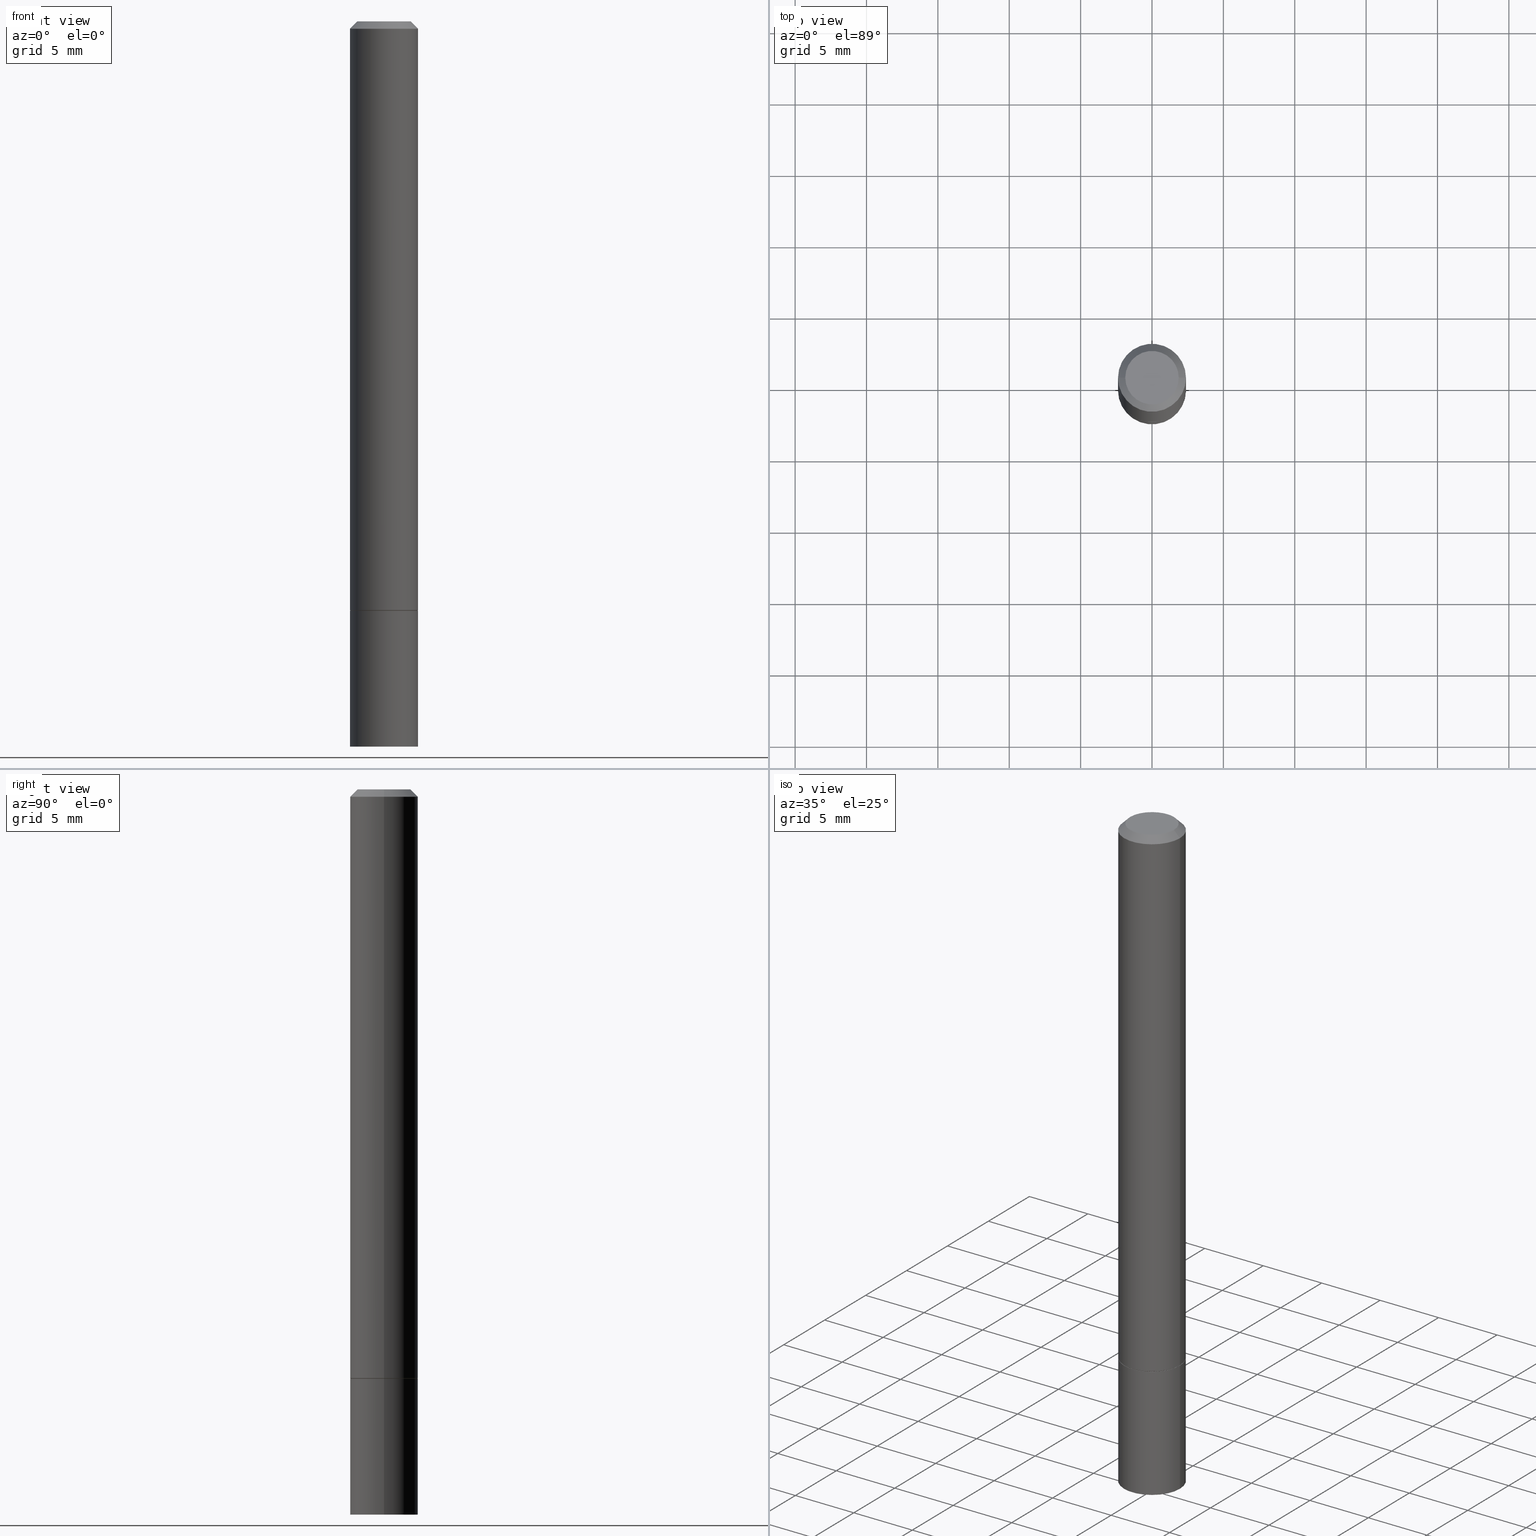
[diagram: canonical four-view strip — front | top / right | iso, engineering-drawing reading convention]
A machine part, canonical four-view strip (front | top / right | iso — engineering-drawing reading convention). The complete STEP part file that produces these views, byte-faithful:
ISO-10303-21;
HEADER;
FILE_DESCRIPTION (( 'STEP AP203' ),
    '1' );
FILE_NAME ('31754.STEP',
    '2024-02-27T13:29:47',
    ( '' ),
    ( '' ),
    'SwSTEP 2.0',
    'SolidWorks 2023',
    '' );
FILE_SCHEMA (( 'CONFIG_CONTROL_DESIGN' ));
ENDSEC;

DATA;
#1 = ORIENTED_EDGE ( 'NONE', *, *, #70, .F. ) ;
#2 = FACE_OUTER_BOUND ( 'NONE', #336, .T. ) ;
#3 = COORDINATED_UNIVERSAL_TIME_OFFSET ( 5, 0, .BEHIND. ) ;
#4 = CARTESIAN_POINT ( 'NONE',  ( 0.09375000000000001388, -6.328309926653198928E-15, -1.625000000000000000 ) ) ;
#5 = CONICAL_SURFACE ( 'NONE', #125, 0.09374999999999981959, 0.7853981633974465026 ) ;
#6 = AXIS2_PLACEMENT_3D ( 'NONE', #267, #240, #188 ) ;
#7 = EDGE_CURVE ( 'NONE', #216, #362, #335, .T. ) ;
#8 = DIRECTION ( 'NONE',  ( -1.000000000000000000, 6.982962677686267499E-15, 0.000000000000000000 ) ) ;
#9 = CARTESIAN_POINT ( 'NONE',  ( 3.971441341244661927E-29, -5.670165694281268417E-15, -1.623999999999999888 ) ) ;
#10 = ADVANCED_BREP_SHAPE_REPRESENTATION ( '31754', ( #287, #284, #88 ), #360 ) ;
#11 = EDGE_CURVE ( 'NONE', #252, #250, #248, .T. ) ;
#12 = CARTESIAN_POINT ( 'NONE',  ( 3.973886810050848091E-29, -5.673657175620113002E-15, -1.625000000000000222 ) ) ;
#13 = ORGANIZATION ( 'UNSPECIFIED', 'UNSPECIFIED', '' ) ;
#14 = DIRECTION ( 'NONE',  ( -2.445468806185136597E-29, 3.491481338843145583E-15, 1.000000000000000000 ) ) ;
#15 = DIRECTION ( 'NONE',  ( -2.445468806185136877E-29, 3.491481338843145188E-15, 1.000000000000000000 ) ) ;
#16 = CARTESIAN_POINT ( 'NONE',  ( 0.09375000000000001388, -6.546527510330875041E-16, 4.571415727308690506E-30 ) ) ;
#17 = ADVANCED_FACE ( 'NONE', ( #2 ), #171, .T. ) ;
#18 = DIRECTION ( 'NONE',  ( 1.000000000000000000, -6.982962677686261977E-15, 0.000000000000000000 ) ) ;
#19 = PLANE ( 'NONE',  #307 ) ;
#20 = DIRECTION ( 'NONE',  ( 2.438088387897960049E-29, -3.491481338843145188E-15, -1.000000000000000000 ) ) ;
#21 = PRODUCT_DEFINITION ( 'UNKNOWN', '', #222, #152 ) ;
#22 = AXIS2_PLACEMENT_3D ( 'NONE', #351, #316, #123 ) ;
#23 = VERTEX_POINT ( 'NONE', #65 ) ;
#24 = PERSON_AND_ORGANIZATION_ROLE ( 'creator' ) ;
#25 = EDGE_LOOP ( 'NONE', ( #303, #153, #224, #170 ) ) ;
#26 = DIRECTION ( 'NONE',  ( -2.445468806185136597E-29, 3.491481338843145583E-15, 1.000000000000000000 ) ) ;
#27 = PRODUCT_RELATED_PRODUCT_CATEGORY ( 'detail', '', ( #61 ) ) ;
#28 = CARTESIAN_POINT ( 'NONE',  ( 0.000000000000000000, 0.000000000000000000, 0.000000000000000000 ) ) ;
#29 = PERSON_AND_ORGANIZATION_ROLE ( 'creator' ) ;
#30 = EDGE_LOOP ( 'NONE', ( #225, #176 ) ) ;
#31 = PRODUCT_DEFINITION_SHAPE ( 'NONE', 'NONE',  #21 ) ;
#32 = DIRECTION ( 'NONE',  ( 0.7071067811864267805, -2.468850131080992517E-15, 0.7071067811866682540 ) ) ;
#33 = APPROVAL ( #365, 'UNSPECIFIED' ) ;
#34 = DIRECTION ( 'NONE',  ( -2.445468806185136597E-29, 3.491481338843145583E-15, 1.000000000000000000 ) ) ;
#35 = AXIS2_PLACEMENT_3D ( 'NONE', #158, #73, #244 ) ;
#36 = DIRECTION ( 'NONE',  ( -0.7071067811864267805, 7.493145998869918709E-15, 0.7071067811866682540 ) ) ;
#37 = DATE_TIME_ROLE ( 'classification_date' ) ;
#38 = FACE_OUTER_BOUND ( 'NONE', #60, .T. ) ;
#39 = ADVANCED_FACE ( 'NONE', ( #92 ), #343, .F. ) ;
#40 = CARTESIAN_POINT ( 'NONE',  ( 3.973886810050846970E-29, -5.673657175620112213E-15, -1.625000000000000000 ) ) ;
#41 = EDGE_LOOP ( 'NONE', ( #140, #364, #280, #136 ) ) ;
#42 = DIRECTION ( 'NONE',  ( 1.000000000000000000, -6.982962677686266711E-15, 4.876176775795935793E-29 ) ) ;
#43 = CARTESIAN_POINT ( 'NONE',  ( 5.149934974793613022E-16, 0.07374999999999988509, -2.574967487396815385E-16 ) ) ;
#44 = EDGE_CURVE ( 'NONE', #362, #216, #181, .T. ) ;
#45 = PLANE ( 'NONE',  #119 ) ;
#46 =( NAMED_UNIT ( * ) PLANE_ANGLE_UNIT ( ) SI_UNIT ( $, .RADIAN. ) );
#47 = CC_DESIGN_PERSON_AND_ORGANIZATION_ASSIGNMENT ( #201, #304, ( #61 ) ) ;
#48 = DIRECTION ( 'NONE',  ( -1.000000000000000000, 6.982962677686265922E-15, -4.876176775795935793E-29 ) ) ;
#49 = ORIENTED_EDGE ( 'NONE', *, *, #154, .F. ) ;
#50 = AXIS2_PLACEMENT_3D ( 'NONE', #182, #348, #266 ) ;
#51 = APPROVAL_STATUS ( 'not_yet_approved' ) ;
#52 = VERTEX_POINT ( 'NONE', #71 ) ;
#53 =( NAMED_UNIT ( * ) SI_UNIT ( $, .STERADIAN. ) SOLID_ANGLE_UNIT ( ) );
#54 = ORIENTED_EDGE ( 'NONE', *, *, #223, .T. ) ;
#55 = EDGE_CURVE ( 'NONE', #362, #56, #261, .T. ) ;
#56 = VERTEX_POINT ( 'NONE', #295 ) ;
#57 = CLOSED_SHELL ( 'NONE', ( #173, #345, #39, #17 ) ) ;
#58 = DATE_AND_TIME ( #114, #237 ) ;
#59 = CC_DESIGN_APPROVAL ( #33, ( #222 ) ) ;
#60 = EDGE_LOOP ( 'NONE', ( #256, #339, #1, #309 ) ) ;
#61 = PRODUCT ( '31754', '31754', '', ( #107 ) ) ;
#62 = ADVANCED_FACE ( 'NONE', ( #90 ), #273, .T. ) ;
#63 = CARTESIAN_POINT ( 'NONE',  ( -0.09374999999999981959, 5.848231242562233185E-16, -0.02000000000000001429 ) ) ;
#64 = CALENDAR_DATE ( 2024, 27, 2 ) ;
#65 = CARTESIAN_POINT ( 'NONE',  ( -0.09274999999999999911, -5.009330333854396895E-15, -1.625000000000000222 ) ) ;
#66 = CYLINDRICAL_SURFACE ( 'NONE', #50, 0.09375000000000001388 ) ;
#67 = VECTOR ( 'NONE', #36, 39.37007874015748143 ) ;
#68 = CC_DESIGN_APPROVAL ( #94, ( #141 ) ) ;
#69 = FACE_OUTER_BOUND ( 'NONE', #41, .T. ) ;
#70 = EDGE_CURVE ( 'NONE', #126, #52, #106, .T. ) ;
#71 = CARTESIAN_POINT ( 'NONE',  ( -0.09375000000000001388, -5.662176111878106581E-15, -1.625000000000000000 ) ) ;
#72 = CARTESIAN_POINT ( 'NONE',  ( 0.09374999999999991673, -6.546527510330869125E-16, 4.571415727308685602E-30 ) ) ;
#73 = DIRECTION ( 'NONE',  ( -2.445468806185136597E-29, 3.491481338843145583E-15, 1.000000000000000000 ) ) ;
#74 = LINE ( 'NONE', #215, #189 ) ;
#75 = CARTESIAN_POINT ( 'NONE',  ( 6.546527510331364135E-16, 0.09374999999999301947, -2.000000000000000444 ) ) ;
#76 = EDGE_CURVE ( 'NONE', #250, #252, #87, .T. ) ;
#77 = DIRECTION ( 'NONE',  ( 0.7071067811865462405, -7.319954787623251312E-15, -0.7071067811865487940 ) ) ;
#78 = DIMENSIONAL_EXPONENTS ( 1.000000000000000000, 0.000000000000000000, 0.000000000000000000, 0.000000000000000000, 0.000000000000000000, 0.000000000000000000, 0.000000000000000000 ) ;
#79 = ORIENTED_EDGE ( 'NONE', *, *, #86, .T. ) ;
#80 = LOCAL_TIME ( 8, 29, 47.00000000000000000, #312 ) ;
#81 = ADVANCED_FACE ( 'NONE', ( #69 ), #5, .T. ) ;
#82 = ORIENTED_EDGE ( 'NONE', *, *, #76, .T. ) ;
#83 = EDGE_LOOP ( 'NONE', ( #82, #276, #49, #198 ) ) ;
#84 = CALENDAR_DATE ( 2024, 27, 2 ) ;
#85 = ORIENTED_EDGE ( 'NONE', *, *, #109, .F. ) ;
#86 = EDGE_CURVE ( 'NONE', #334, #250, #322, .T. ) ;
#87 = CIRCLE ( 'NONE', #314, 0.09375000000000001388 ) ;
#88 = AXIS2_PLACEMENT_3D ( 'NONE', #277, #137, #164 ) ;
#89 = CARTESIAN_POINT ( 'NONE',  ( -0.09375000000000001388, -5.662176111878106581E-15, -2.000000000000000000 ) ) ;
#90 = FACE_OUTER_BOUND ( 'NONE', #25, .T. ) ;
#91 = DIRECTION ( 'NONE',  ( -2.445468806185136597E-29, 3.491481338843145583E-15, 1.000000000000000000 ) ) ;
#92 = FACE_OUTER_BOUND ( 'NONE', #30, .T. ) ;
#93 = AXIS2_PLACEMENT_3D ( 'NONE', #236, #91, #288 ) ;
#94 = APPROVAL ( #147, 'UNSPECIFIED' ) ;
#95 = AXIS2_PLACEMENT_3D ( 'NONE', #129, #132, #100 ) ;
#96 = PERSON ( 'UNSPECIFIED', 'UNSPECIFIED', 'UNSPECIFIED', ('UNSPECIFIED'), ('UNSPECIFIED'), ('UNSPECIFIED') ) ;
#97 = DIRECTION ( 'NONE',  ( 1.000000000000000000, -6.982962677686261977E-15, 0.000000000000000000 ) ) ;
#98 = ORIENTED_EDGE ( 'NONE', *, *, #192, .F. ) ;
#99 = FACE_OUTER_BOUND ( 'NONE', #232, .T. ) ;
#100 = DIRECTION ( 'NONE',  ( 1.000000000000000000, -6.982962677686261977E-15, 0.000000000000000000 ) ) ;
#101 = AXIS2_PLACEMENT_3D ( 'NONE', #12, #124, #97 ) ;
#102 = ORIENTED_EDGE ( 'NONE', *, *, #180, .F. ) ;
#103 = CARTESIAN_POINT ( 'NONE',  ( -0.09374999999999991673, 6.661338147750933326E-16, -4.611501647113969791E-30 ) ) ;
#104 = DIRECTION ( 'NONE',  ( -2.445468806185136597E-29, 3.491481338843145583E-15, 1.000000000000000000 ) ) ;
#105 = EDGE_CURVE ( 'NONE', #23, #252, #145, .T. ) ;
#106 = CIRCLE ( 'NONE', #326, 0.09375000000000001388 ) ;
#107 = MECHANICAL_CONTEXT ( 'NONE', #363, 'mechanical' ) ;
#108 = ORIENTED_EDGE ( 'NONE', *, *, #122, .F. ) ;
#109 = EDGE_CURVE ( 'NONE', #52, #126, #211, .T. ) ;
#110 = EDGE_LOOP ( 'NONE', ( #108, #366 ) ) ;
#111 = AXIS2_PLACEMENT_3D ( 'NONE', #28, #255, #342 ) ;
#112 = APPLICATION_PROTOCOL_DEFINITION ( 'international standard', 'config_control_design', 1994, #270 ) ;
#113 = ORIENTED_EDGE ( 'NONE', *, *, #185, .F. ) ;
#114 = CALENDAR_DATE ( 2024, 27, 2 ) ;
#115 = ORIENTED_EDGE ( 'NONE', *, *, #7, .T. ) ;
#116 = APPROVAL_DATE_TIME ( #347, #94 ) ;
#117 = EDGE_LOOP ( 'NONE', ( #197, #297, #79, #200 ) ) ;
#118 = AXIS2_PLACEMENT_3D ( 'NONE', #238, #187, #121 ) ;
#119 = AXIS2_PLACEMENT_3D ( 'NONE', #43, #301, #48 ) ;
#120 = FACE_OUTER_BOUND ( 'NONE', #83, .T. ) ;
#121 = DIRECTION ( 'NONE',  ( -1.000000000000000000, 6.982962677686267499E-15, 0.000000000000000000 ) ) ;
#122 = EDGE_CURVE ( 'NONE', #214, #157, #359, .T. ) ;
#123 = DIRECTION ( 'NONE',  ( 1.000000000000000000, -6.982962677686266711E-15, 4.876176775795935793E-29 ) ) ;
#124 = DIRECTION ( 'NONE',  ( -2.445468806185136597E-29, 3.491481338843145583E-15, 1.000000000000000000 ) ) ;
#125 = AXIS2_PLACEMENT_3D ( 'NONE', #206, #292, #8 ) ;
#126 = VERTEX_POINT ( 'NONE', #4 ) ;
#127 = DIRECTION ( 'NONE',  ( 1.000000000000000000, -6.982962677686267499E-15, 0.000000000000000000 ) ) ;
#128 = LINE ( 'NONE', #16, #354 ) ;
#129 = CARTESIAN_POINT ( 'NONE',  ( 3.973886810050848091E-29, -5.673657175620113002E-15, -1.625000000000000222 ) ) ;
#130 = VECTOR ( 'NONE', #15, 39.37007874015748143 ) ;
#131 = PLANE ( 'NONE',  #146 ) ;
#132 = DIRECTION ( 'NONE',  ( -2.445468806185136597E-29, 3.491481338843145583E-15, 1.000000000000000000 ) ) ;
#133 = DIRECTION ( 'NONE',  ( -1.000000000000000000, 6.982962677686265922E-15, -4.876176775795935793E-29 ) ) ;
#134 = AXIS2_PLACEMENT_3D ( 'NONE', #306, #26, #202 ) ;
#135 = LOCAL_TIME ( 8, 29, 47.00000000000000000, #3 ) ;
#136 = ORIENTED_EDGE ( 'NONE', *, *, #185, .T. ) ;
#137 = DIRECTION ( 'NONE',  ( 0.000000000000000000, 0.000000000000000000, 1.000000000000000000 ) ) ;
#138 = VERTEX_POINT ( 'NONE', #235 ) ;
#139 = PERSON_AND_ORGANIZATION ( #96, #13 ) ;
#140 = ORIENTED_EDGE ( 'NONE', *, *, #263, .F. ) ;
#141 = SECURITY_CLASSIFICATION ( '', '', #286 ) ;
#142 = PERSON_AND_ORGANIZATION ( #96, #13 ) ;
#143 = EDGE_LOOP ( 'NONE', ( #102, #230 ) ) ;
#144 = DIRECTION ( 'NONE',  ( 1.000000000000000000, -6.982962677686261189E-15, 0.000000000000000000 ) ) ;
#145 = LINE ( 'NONE', #184, #67 ) ;
#146 = AXIS2_PLACEMENT_3D ( 'NONE', #246, #352, #218 ) ;
#147 = APPROVAL_STATUS ( 'not_yet_approved' ) ;
#148 = DIRECTION ( 'NONE',  ( -2.445468806185136597E-29, 3.491481338843145583E-15, 1.000000000000000000 ) ) ;
#149 = ADVANCED_FACE ( 'NONE', ( #120 ), #234, .T. ) ;
#150 = CARTESIAN_POINT ( 'NONE',  ( 0.000000000000000000, 0.000000000000000000, 0.000000000000000000 ) ) ;
#151 = DIRECTION ( 'NONE',  ( -1.000000000000000000, 6.982962677686265922E-15, -4.876176775795935793E-29 ) ) ;
#152 = DESIGN_CONTEXT ( 'detailed design', #270, 'design' ) ;
#153 = ORIENTED_EDGE ( 'NONE', *, *, #263, .T. ) ;
#154 = EDGE_CURVE ( 'NONE', #138, #56, #329, .T. ) ;
#155 = DIRECTION ( 'NONE',  ( -2.445468806185136597E-29, 3.491481338843145583E-15, 1.000000000000000000 ) ) ;
#156 = FACE_OUTER_BOUND ( 'NONE', #241, .T. ) ;
#157 = VERTEX_POINT ( 'NONE', #89 ) ;
#158 = CARTESIAN_POINT ( 'NONE',  ( 4.890937612370273194E-29, -6.982962677686291165E-15, -2.000000000000000000 ) ) ;
#159 =( LENGTH_UNIT ( ) NAMED_UNIT ( * ) SI_UNIT ( $, .METRE. ) );
#160 = VECTOR ( 'NONE', #269, 39.37007874015748143 ) ;
#161 = CC_DESIGN_DATE_AND_TIME_ASSIGNMENT ( #178, #37, ( #141 ) ) ;
#162 =( CONVERSION_BASED_UNIT ( 'INCH', #220 ) LENGTH_UNIT ( ) NAMED_UNIT ( #78 ) );
#163 = CARTESIAN_POINT ( 'NONE',  ( 0.09274999999999999911, -6.321326963975513703E-15, -1.625000000000000222 ) ) ;
#164 = DIRECTION ( 'NONE',  ( 1.000000000000000000, 0.000000000000000000, 0.000000000000000000 ) ) ;
#165 = CC_DESIGN_PERSON_AND_ORGANIZATION_ASSIGNMENT ( #282, #29, ( #222 ) ) ;
#166 = ORIENTED_EDGE ( 'NONE', *, *, #11, .T. ) ;
#167 = PERSON_AND_ORGANIZATION ( #96, #13 ) ;
#168 = CARTESIAN_POINT ( 'NONE',  ( 3.971441341244661927E-29, -5.670165694281268417E-15, -1.623999999999999888 ) ) ;
#169 = DATE_TIME_ROLE ( 'creation_date' ) ;
#170 = ORIENTED_EDGE ( 'NONE', *, *, #55, .F. ) ;
#171 = CYLINDRICAL_SURFACE ( 'NONE', #111, 0.09375000000000001388 ) ;
#172 = AXIS2_PLACEMENT_3D ( 'NONE', #213, #14, #127 ) ;
#173 = ADVANCED_FACE ( 'NONE', ( #38 ), #66, .T. ) ;
#174 = LOCAL_TIME ( 8, 29, 47.00000000000000000, #199 ) ;
#175 = APPROVAL_DATE_TIME ( #58, #33 ) ;
#176 = ORIENTED_EDGE ( 'NONE', *, *, #109, .T. ) ;
#177 = DIRECTION ( 'NONE',  ( -2.445468806185136597E-29, 3.491481338843145583E-15, 1.000000000000000000 ) ) ;
#178 = DATE_AND_TIME ( #64, #135 ) ;
#179 = CARTESIAN_POINT ( 'NONE',  ( 3.973886810050846970E-29, -5.673657175620112213E-15, -1.625000000000000000 ) ) ;
#180 = EDGE_CURVE ( 'NONE', #334, #23, #259, .T. ) ;
#181 = CIRCLE ( 'NONE', #217, 0.07374999999999988509 ) ;
#182 = CARTESIAN_POINT ( 'NONE',  ( 0.000000000000000000, 0.000000000000000000, 0.000000000000000000 ) ) ;
#183 = UNCERTAINTY_MEASURE_WITH_UNIT (LENGTH_MEASURE( 1.000000000000000082E-05 ), #162, 'distance_accuracy_value', 'NONE');
#184 = CARTESIAN_POINT ( 'NONE',  ( -0.09274999999999999911, -5.014628788202620085E-15, -1.625000000000000222 ) ) ;
#185 = EDGE_CURVE ( 'NONE', #56, #138, #349, .T. ) ;
#186 = PERSON_AND_ORGANIZATION ( #96, #13 ) ;
#187 = DIRECTION ( 'NONE',  ( 2.445468806185136597E-29, -3.491481338843145583E-15, -1.000000000000000000 ) ) ;
#188 = DIRECTION ( 'NONE',  ( 1.000000000000000000, -6.982962677686261977E-15, 0.000000000000000000 ) ) ;
#189 = VECTOR ( 'NONE', #77, 39.37007874015748143 ) ;
#190 = CARTESIAN_POINT ( 'NONE',  ( -0.09375000000000001388, -2.203863845753969567E-15, -1.623999999999999888 ) ) ;
#191 = CARTESIAN_POINT ( 'NONE',  ( 0.09375000000000001388, -7.637615428719378669E-15, -2.000000000000000000 ) ) ;
#192 = EDGE_CURVE ( 'NONE', #157, #52, #239, .T. ) ;
#193 = VECTOR ( 'NONE', #358, 39.37007874015748143 ) ;
#194 = AXIS2_PLACEMENT_3D ( 'NONE', #328, #331, #18 ) ;
#195 = LINE ( 'NONE', #103, #160 ) ;
#196 = CC_DESIGN_PERSON_AND_ORGANIZATION_ASSIGNMENT ( #294, #231, ( #141 ) ) ;
#197 = ORIENTED_EDGE ( 'NONE', *, *, #105, .F. ) ;
#198 = ORIENTED_EDGE ( 'NONE', *, *, #247, .F. ) ;
#199 = COORDINATED_UNIVERSAL_TIME_OFFSET ( 5, 0, .BEHIND. ) ;
#200 = ORIENTED_EDGE ( 'NONE', *, *, #11, .F. ) ;
#201 = PERSON_AND_ORGANIZATION ( #96, #13 ) ;
#202 = DIRECTION ( 'NONE',  ( 1.000000000000000000, -6.982962677686265922E-15, 4.876176775795935232E-29 ) ) ;
#203 = APPROVAL ( #51, 'UNSPECIFIED' ) ;
#204 = ORIENTED_EDGE ( 'NONE', *, *, #86, .F. ) ;
#205 = LOCAL_TIME ( 8, 29, 47.00000000000000000, #317 ) ;
#206 = CARTESIAN_POINT ( 'NONE',  ( 4.890937612370275786E-31, -6.982962677686296539E-17, -0.02000000000000001429 ) ) ;
#207 = ADVANCED_FACE ( 'NONE', ( #221 ), #131, .F. ) ;
#208 = DIRECTION ( 'NONE',  ( 1.000000000000000000, -6.982962677686261189E-15, 0.000000000000000000 ) ) ;
#209 = PERSON_AND_ORGANIZATION_ROLE ( 'design_supplier' ) ;
#210 = DIRECTION ( 'NONE',  ( -2.445468806185136597E-29, 3.491481338843145583E-15, 1.000000000000000000 ) ) ;
#211 = CIRCLE ( 'NONE', #320, 0.09375000000000001388 ) ;
#212 = DIRECTION ( 'NONE',  ( 2.438088387897960049E-29, -3.491481338843145188E-15, -1.000000000000000000 ) ) ;
#213 = CARTESIAN_POINT ( 'NONE',  ( 4.890937612370275786E-31, -6.982962677686296539E-17, -0.02000000000000001429 ) ) ;
#214 = VERTEX_POINT ( 'NONE', #191 ) ;
#215 = CARTESIAN_POINT ( 'NONE',  ( 0.09374999999999981959, -7.130013140679428044E-16, -0.02000000000000001429 ) ) ;
#216 = VERTEX_POINT ( 'NONE', #353 ) ;
#217 = AXIS2_PLACEMENT_3D ( 'NONE', #150, #34, #296 ) ;
#218 = DIRECTION ( 'NONE',  ( 1.000000000000000000, -6.982962677686265922E-15, 4.876176775795935793E-29 ) ) ;
#219 = LINE ( 'NONE', #72, #130 ) ;
#220 = LENGTH_MEASURE_WITH_UNIT ( LENGTH_MEASURE( 0.02539999999999999897 ), #159 );
#221 = FACE_OUTER_BOUND ( 'NONE', #143, .T. ) ;
#222 = PRODUCT_DEFINITION_FORMATION_WITH_SPECIFIED_SOURCE ( 'ANY', '', #61, .NOT_KNOWN. ) ;
#223 = EDGE_CURVE ( 'NONE', #214, #126, #128, .T. ) ;
#224 = ORIENTED_EDGE ( 'NONE', *, *, #154, .T. ) ;
#225 = ORIENTED_EDGE ( 'NONE', *, *, #70, .T. ) ;
#226 = VECTOR ( 'NONE', #32, 39.37007874015748143 ) ;
#227 = APPROVAL_PERSON_ORGANIZATION ( #142, #203, #279 ) ;
#228 = APPROVAL_ROLE ( '' ) ;
#229 = ORIENTED_EDGE ( 'NONE', *, *, #305, .T. ) ;
#230 = ORIENTED_EDGE ( 'NONE', *, *, #298, .F. ) ;
#231 = PERSON_AND_ORGANIZATION_ROLE ( 'classification_officer' ) ;
#232 = EDGE_LOOP ( 'NONE', ( #340, #274, #283, #204 ) ) ;
#233 = ADVANCED_FACE ( 'NONE', ( #99 ), #330, .T. ) ;
#234 = CYLINDRICAL_SURFACE ( 'NONE', #22, 0.09374999999999991673 ) ;
#235 = CARTESIAN_POINT ( 'NONE',  ( 0.09374999999999981959, -7.130013140679428044E-16, -0.02000000000000001429 ) ) ;
#236 = CARTESIAN_POINT ( 'NONE',  ( 4.890937612370275786E-31, -6.982962677686296539E-17, -0.02000000000000001429 ) ) ;
#237 = LOCAL_TIME ( 8, 29, 47.00000000000000000, #338 ) ;
#238 = CARTESIAN_POINT ( 'NONE',  ( 4.890937612370275786E-31, -6.982962677686296539E-17, -0.02000000000000001429 ) ) ;
#239 = LINE ( 'NONE', #271, #193 ) ;
#240 = DIRECTION ( 'NONE',  ( -2.445468806185136597E-29, 3.491481338843145583E-15, 1.000000000000000000 ) ) ;
#241 = EDGE_LOOP ( 'NONE', ( #313, #115 ) ) ;
#242 = ADVANCED_FACE ( 'NONE', ( #245 ), #350, .T. ) ;
#243 = AXIS2_PLACEMENT_3D ( 'NONE', #168, #310, #144 ) ;
#244 = DIRECTION ( 'NONE',  ( 1.000000000000000000, -6.982962677686261189E-15, 0.000000000000000000 ) ) ;
#245 = FACE_OUTER_BOUND ( 'NONE', #117, .T. ) ;
#246 = CARTESIAN_POINT ( 'NONE',  ( 3.973886810050848091E-29, -5.673657175620113002E-15, -1.625000000000000222 ) ) ;
#247 = EDGE_CURVE ( 'NONE', #250, #138, #219, .T. ) ;
#248 = CIRCLE ( 'NONE', #243, 0.09375000000000001388 ) ;
#249 = APPROVAL_PERSON_ORGANIZATION ( #139, #33, #228 ) ;
#250 = VERTEX_POINT ( 'NONE', #327 ) ;
#251 = EDGE_LOOP ( 'NONE', ( #278, #166, #325, #113 ) ) ;
#252 = VERTEX_POINT ( 'NONE', #190 ) ;
#253 = AXIS2_PLACEMENT_3D ( 'NONE', #321, #148, #258 ) ;
#254 = DATE_AND_TIME ( #361, #80 ) ;
#255 = DIRECTION ( 'NONE',  ( -2.445468806185136597E-29, 3.491481338843145583E-15, 1.000000000000000000 ) ) ;
#256 = ORIENTED_EDGE ( 'NONE', *, *, #122, .T. ) ;
#257 = CC_DESIGN_DATE_AND_TIME_ASSIGNMENT ( #308, #169, ( #21 ) ) ;
#258 = DIRECTION ( 'NONE',  ( 1.000000000000000000, -6.982962677686261189E-15, 0.000000000000000000 ) ) ;
#259 = CIRCLE ( 'NONE', #101, 0.09274999999999999911 ) ;
#260 = CC_DESIGN_SECURITY_CLASSIFICATION ( #141, ( #222 ) ) ;
#261 = LINE ( 'NONE', #63, #289 ) ;
#262 = SHAPE_DEFINITION_REPRESENTATION ( #31, #10 ) ;
#263 = EDGE_CURVE ( 'NONE', #216, #138, #74, .T. ) ;
#264 = DIRECTION ( 'NONE',  ( -0.7071067811865462405, 2.468850131082243256E-15, -0.7071067811865487940 ) ) ;
#265 = AXIS2_PLACEMENT_3D ( 'NONE', #315, #212, #151 ) ;
#266 = DIRECTION ( 'NONE',  ( 1.000000000000000000, -6.982962677686265922E-15, 4.876176775795935793E-29 ) ) ;
#267 = CARTESIAN_POINT ( 'NONE',  ( 3.973886810050848091E-29, -5.673657175620113002E-15, -1.625000000000000222 ) ) ;
#268 = CARTESIAN_POINT ( 'NONE',  ( -0.07374999999999988509, 5.499083108677923596E-16, -3.723527850031187664E-30 ) ) ;
#269 = DIRECTION ( 'NONE',  ( -2.445468806185136877E-29, 3.491481338843145188E-15, 1.000000000000000000 ) ) ;
#270 = APPLICATION_CONTEXT ( 'configuration controlled 3d designs of mechanical parts and assemblies' ) ;
#271 = CARTESIAN_POINT ( 'NONE',  ( -0.09375000000000001388, 6.661338147750940229E-16, -4.611501647113973995E-30 ) ) ;
#272 = FACE_OUTER_BOUND ( 'NONE', #110, .T. ) ;
#273 = CONICAL_SURFACE ( 'NONE', #118, 0.09374999999999981959, 0.7853981633974465026 ) ;
#274 = ORIENTED_EDGE ( 'NONE', *, *, #105, .T. ) ;
#275 = CIRCLE ( 'NONE', #6, 0.09274999999999999911 ) ;
#276 = ORIENTED_EDGE ( 'NONE', *, *, #319, .T. ) ;
#277 = CARTESIAN_POINT ( 'NONE',  ( 0.000000000000000000, 0.000000000000000000, 0.000000000000000000 ) ) ;
#278 = ORIENTED_EDGE ( 'NONE', *, *, #319, .F. ) ;
#279 = APPROVAL_ROLE ( '' ) ;
#280 = ORIENTED_EDGE ( 'NONE', *, *, #55, .T. ) ;
#281 = CLOSED_SHELL ( 'NONE', ( #233, #149, #62, #81, #311, #242, #207, #323 ) ) ;
#282 = PERSON_AND_ORGANIZATION ( #96, #13 ) ;
#283 = ORIENTED_EDGE ( 'NONE', *, *, #76, .F. ) ;
#284 = MANIFOLD_SOLID_BREP ( 'Body-Move/Copy2[2]', #281 ) ;
#285 = DIRECTION ( 'NONE',  ( 1.000000000000000000, -6.982962677686261189E-15, 0.000000000000000000 ) ) ;
#286 = SECURITY_CLASSIFICATION_LEVEL ( 'unclassified' ) ;
#287 = MANIFOLD_SOLID_BREP ( 'Body-Move/Copy2[1]', #57 ) ;
#288 = DIRECTION ( 'NONE',  ( 1.000000000000000000, -6.982962677686267499E-15, 0.000000000000000000 ) ) ;
#289 = VECTOR ( 'NONE', #264, 39.37007874015748143 ) ;
#290 = CC_DESIGN_APPROVAL ( #203, ( #21 ) ) ;
#291 = APPROVAL_ROLE ( '' ) ;
#292 = DIRECTION ( 'NONE',  ( 2.445468806185136597E-29, -3.491481338843145583E-15, -1.000000000000000000 ) ) ;
#293 = CC_DESIGN_PERSON_AND_ORGANIZATION_ASSIGNMENT ( #344, #209, ( #222 ) ) ;
#294 = PERSON_AND_ORGANIZATION ( #96, #13 ) ;
#295 = CARTESIAN_POINT ( 'NONE',  ( -0.09374999999999981959, 5.848231242562233185E-16, -0.02000000000000001429 ) ) ;
#296 = DIRECTION ( 'NONE',  ( 1.000000000000000000, -6.982962677686265922E-15, 4.876176775795935232E-29 ) ) ;
#297 = ORIENTED_EDGE ( 'NONE', *, *, #298, .T. ) ;
#298 = EDGE_CURVE ( 'NONE', #23, #334, #275, .T. ) ;
#299 = CYLINDRICAL_SURFACE ( 'NONE', #332, 0.09374999999999991673 ) ;
#300 = FACE_OUTER_BOUND ( 'NONE', #251, .T. ) ;
#301 = DIRECTION ( 'NONE',  ( 2.438088387897960049E-29, -3.491481338843145188E-15, -1.000000000000000000 ) ) ;
#302 = APPLICATION_PROTOCOL_DEFINITION ( 'international standard', 'config_control_design', 1994, #363 ) ;
#303 = ORIENTED_EDGE ( 'NONE', *, *, #7, .F. ) ;
#304 = PERSON_AND_ORGANIZATION_ROLE ( 'design_owner' ) ;
#305 = EDGE_CURVE ( 'NONE', #157, #214, #355, .T. ) ;
#306 = CARTESIAN_POINT ( 'NONE',  ( 0.000000000000000000, 0.000000000000000000, 0.000000000000000000 ) ) ;
#307 = AXIS2_PLACEMENT_3D ( 'NONE', #75, #20, #133 ) ;
#308 = DATE_AND_TIME ( #84, #174 ) ;
#309 = ORIENTED_EDGE ( 'NONE', *, *, #223, .F. ) ;
#310 = DIRECTION ( 'NONE',  ( -2.445468806185136597E-29, 3.491481338843145583E-15, 1.000000000000000000 ) ) ;
#311 = ADVANCED_FACE ( 'NONE', ( #300 ), #299, .T. ) ;
#312 = COORDINATED_UNIVERSAL_TIME_OFFSET ( 5, 0, .BEHIND. ) ;
#313 = ORIENTED_EDGE ( 'NONE', *, *, #44, .T. ) ;
#314 = AXIS2_PLACEMENT_3D ( 'NONE', #9, #155, #346 ) ;
#315 = CARTESIAN_POINT ( 'NONE',  ( 6.546527510331273416E-16, 0.09374999999999433786, -1.625000000000000222 ) ) ;
#316 = DIRECTION ( 'NONE',  ( -2.445468806185136597E-29, 3.491481338843145583E-15, 1.000000000000000000 ) ) ;
#317 = COORDINATED_UNIVERSAL_TIME_OFFSET ( 5, 0, .BEHIND. ) ;
#318 = CARTESIAN_POINT ( 'NONE',  ( 0.09274999999999999911, -6.321326963975513703E-15, -1.625000000000000222 ) ) ;
#319 = EDGE_CURVE ( 'NONE', #252, #56, #195, .T. ) ;
#320 = AXIS2_PLACEMENT_3D ( 'NONE', #179, #210, #208 ) ;
#321 = CARTESIAN_POINT ( 'NONE',  ( 4.890937612370273194E-29, -6.982962677686291165E-15, -2.000000000000000000 ) ) ;
#322 = LINE ( 'NONE', #318, #226 ) ;
#323 = ADVANCED_FACE ( 'NONE', ( #156 ), #45, .F. ) ;
#324 = DIRECTION ( 'NONE',  ( -2.445468806185136877E-29, 3.491481338843145188E-15, 1.000000000000000000 ) ) ;
#325 = ORIENTED_EDGE ( 'NONE', *, *, #247, .T. ) ;
#326 = AXIS2_PLACEMENT_3D ( 'NONE', #40, #177, #285 ) ;
#327 = CARTESIAN_POINT ( 'NONE',  ( 0.09375000000000001388, -6.324818445314355132E-15, -1.623999999999999888 ) ) ;
#328 = CARTESIAN_POINT ( 'NONE',  ( 3.973886810050848091E-29, -5.673657175620113002E-15, -1.625000000000000222 ) ) ;
#329 = CIRCLE ( 'NONE', #93, 0.09374999999999981959 ) ;
#330 = CONICAL_SURFACE ( 'NONE', #95, 0.09274999999999999911, 0.7853981633972775267 ) ;
#331 = DIRECTION ( 'NONE',  ( -2.445468806185136597E-29, 3.491481338843145583E-15, 1.000000000000000000 ) ) ;
#332 = AXIS2_PLACEMENT_3D ( 'NONE', #357, #104, #42 ) ;
#333 = APPROVAL_DATE_TIME ( #254, #203 ) ;
#334 = VERTEX_POINT ( 'NONE', #163 ) ;
#335 = CIRCLE ( 'NONE', #134, 0.07374999999999988509 ) ;
#336 = EDGE_LOOP ( 'NONE', ( #98, #229, #54, #85 ) ) ;
#337 = APPROVAL_PERSON_ORGANIZATION ( #186, #94, #291 ) ;
#338 = COORDINATED_UNIVERSAL_TIME_OFFSET ( 5, 0, .BEHIND. ) ;
#339 = ORIENTED_EDGE ( 'NONE', *, *, #192, .T. ) ;
#340 = ORIENTED_EDGE ( 'NONE', *, *, #180, .T. ) ;
#341 = CALENDAR_DATE ( 2024, 27, 2 ) ;
#342 = DIRECTION ( 'NONE',  ( 1.000000000000000000, -6.982962677686265922E-15, 4.876176775795935793E-29 ) ) ;
#343 = PLANE ( 'NONE',  #265 ) ;
#344 = PERSON_AND_ORGANIZATION ( #96, #13 ) ;
#345 = ADVANCED_FACE ( 'NONE', ( #272 ), #19, .T. ) ;
#346 = DIRECTION ( 'NONE',  ( 1.000000000000000000, -6.982962677686261189E-15, 0.000000000000000000 ) ) ;
#347 = DATE_AND_TIME ( #341, #205 ) ;
#348 = DIRECTION ( 'NONE',  ( -2.445468806185136597E-29, 3.491481338843145583E-15, 1.000000000000000000 ) ) ;
#349 = CIRCLE ( 'NONE', #172, 0.09374999999999981959 ) ;
#350 = CONICAL_SURFACE ( 'NONE', #194, 0.09274999999999999911, 0.7853981633972775267 ) ;
#351 = CARTESIAN_POINT ( 'NONE',  ( 0.000000000000000000, 0.000000000000000000, 0.000000000000000000 ) ) ;
#352 = DIRECTION ( 'NONE',  ( -2.438088387897960049E-29, 3.491481338843145188E-15, 1.000000000000000000 ) ) ;
#353 = CARTESIAN_POINT ( 'NONE',  ( 0.07374999999999988509, -6.094815207017961198E-16, 3.931526600461598749E-30 ) ) ;
#354 = VECTOR ( 'NONE', #324, 39.37007874015748143 ) ;
#355 = CIRCLE ( 'NONE', #35, 0.09375000000000001388 ) ;
#356 = CC_DESIGN_PERSON_AND_ORGANIZATION_ASSIGNMENT ( #167, #24, ( #21 ) ) ;
#357 = CARTESIAN_POINT ( 'NONE',  ( 0.000000000000000000, 0.000000000000000000, 0.000000000000000000 ) ) ;
#358 = DIRECTION ( 'NONE',  ( -2.445468806185136877E-29, 3.491481338843145188E-15, 1.000000000000000000 ) ) ;
#359 = CIRCLE ( 'NONE', #253, 0.09375000000000001388 ) ;
#360 =( GEOMETRIC_REPRESENTATION_CONTEXT ( 3 ) GLOBAL_UNCERTAINTY_ASSIGNED_CONTEXT ( ( #183 ) ) GLOBAL_UNIT_ASSIGNED_CONTEXT ( ( #162, #46, #53 ) ) REPRESENTATION_CONTEXT ( 'NONE', 'WORKASPACE' ) );
#361 = CALENDAR_DATE ( 2024, 27, 2 ) ;
#362 = VERTEX_POINT ( 'NONE', #268 ) ;
#363 = APPLICATION_CONTEXT ( 'configuration controlled 3d designs of mechanical parts and assemblies' ) ;
#364 = ORIENTED_EDGE ( 'NONE', *, *, #44, .F. ) ;
#365 = APPROVAL_STATUS ( 'not_yet_approved' ) ;
#366 = ORIENTED_EDGE ( 'NONE', *, *, #305, .F. ) ;
ENDSEC;
END-ISO-10303-21;
